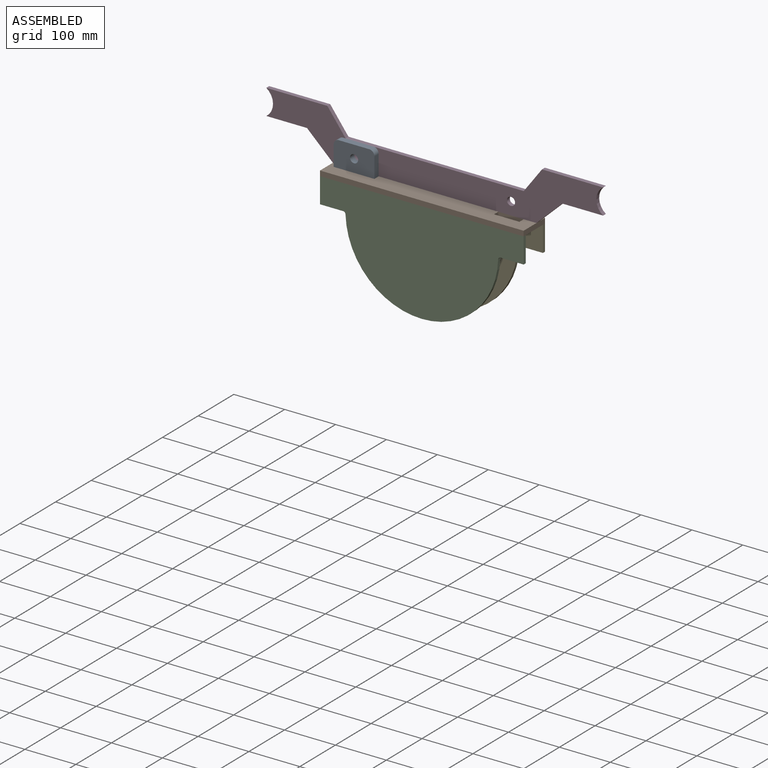
[diagram: assembled view]
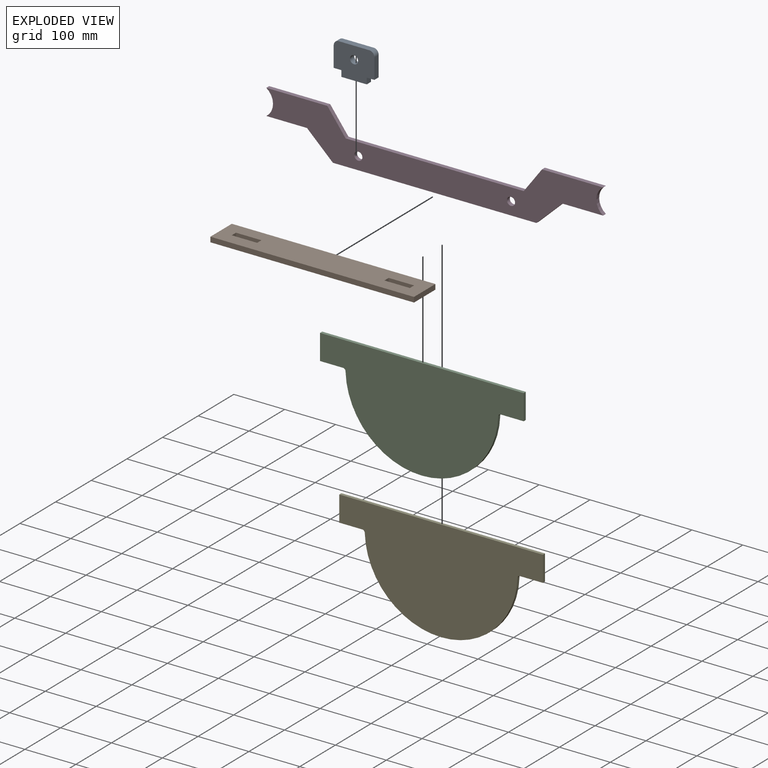
[diagram: exploded view]
GUIDED TOUR — MATED ASSEMBLY (Onshape document ceb0c7186d2a392add2b18d2, AutoMate assembly ceb0c7186d2a392add2b18d2_adab8045cc2968f3f8e7a26d_428f04f57cada901e22389ac_default)

This assembly has 5 components, labeled P0..P4 below (a component is one placed occurrence of a part; the same part can appear more than once), held together by 4 mates. A mate is a constraint between two components; its type names the relative motion it leaves free:
  FASTENED — locks the two components together rigidly (no relative motion).
Axis/direction vectors are unit vectors and 'through' points are millimeter coordinates, both in the assembly's world frame.

MATES
  1. FASTENED "Fastened 4": P4 <-> P1, direction (0.000, 0.000, 1.000) through (-182.62, 120.45, 76.19) mm
  2. FASTENED "Fastened 3": P2 <-> P1, direction (0.000, 0.000, 1.000) through (-182.62, 60.45, 76.19) mm
  3. FASTENED "Fastened 2": P0 <-> P1, direction (0.000, 0.000, 1.000) through (-157.62, 84.45, 86.19) mm
  4. FASTENED "Fastened 5": P3 <-> P0, direction (0.000, -1.000, 0.000) through (-132.62, 96.45, 111.19) mm

ASSEMBLY ORDER
  1. P3 — the base component [order verified]
  2. P0 [order verified]
  3. P1 [order verified]
  4. P2 [order verified]
  5. P4 [order verified]
Order-tag legend:
  [order verified] — this step's position reverses a verified removal order: the component was checked to insert without passing through the ones already placed.

Of the 5 components, 5 carry the full construction recipe — the FeatureScript program that regenerates the part's solid from scratch; the rest are supplied as boundary geometry only.
Each toured component is shown spotlighted twice — in the assembled view, then in the exploded view, where a leader line traces a displaced component back to its assembled socket (saturated green if recipe-attached, orange if geometry-only; every other component desaturated gray) — followed by its recipe or geometry summary and the mates that hold it.
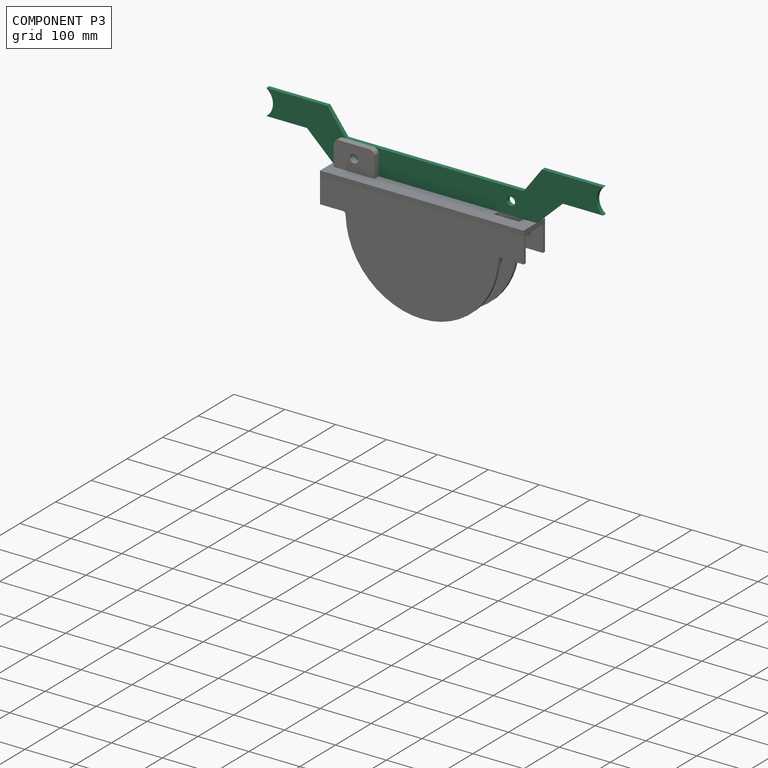
[diagram: component P3 — assembled]
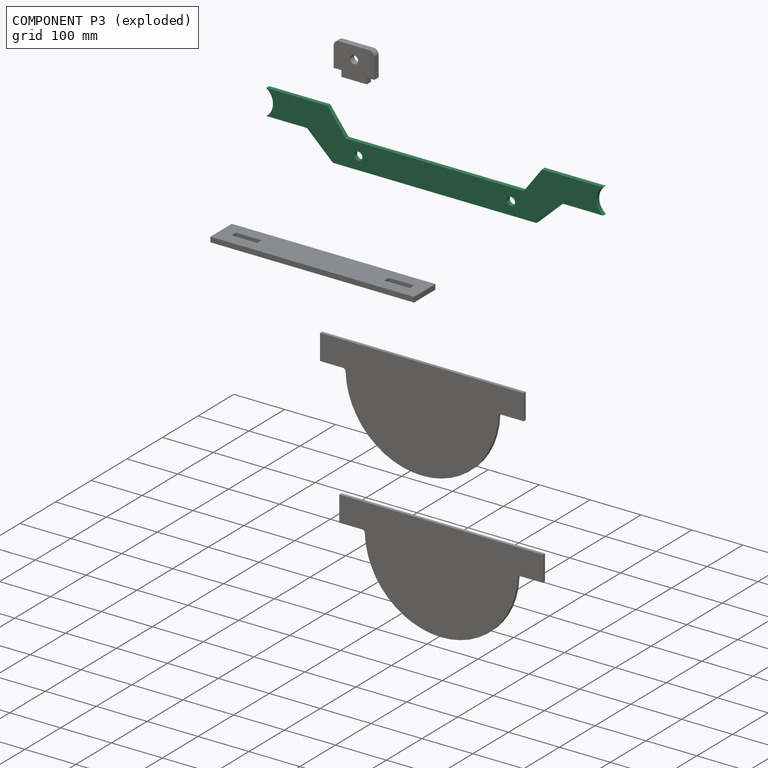
[diagram: component P3 — exploded]
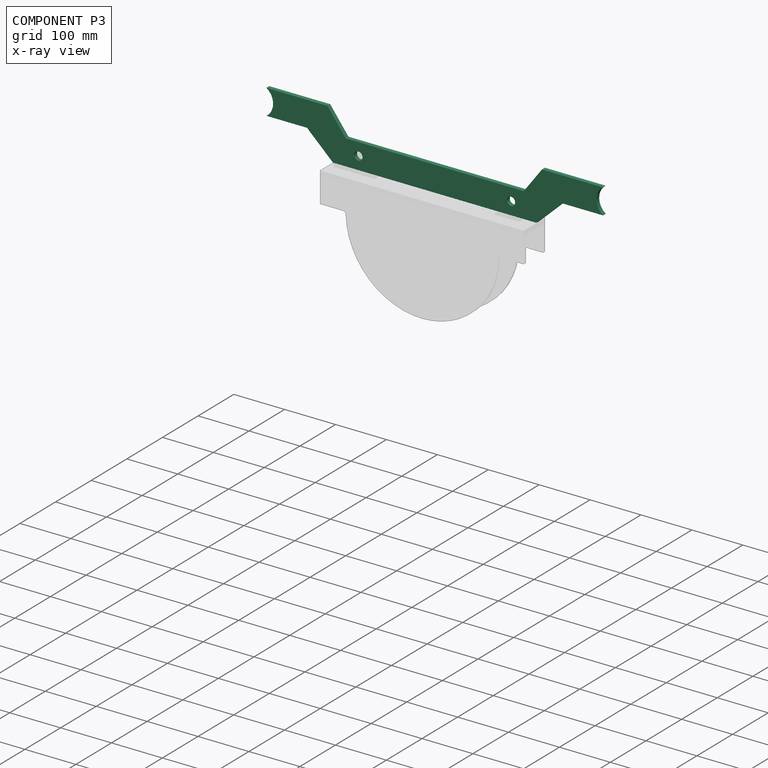
[diagram: component P3 — x-ray view]
COMPONENT P3 — recipe-attached (CADFS 00969449, mesh-verified: the recipe's output STEP matches this component's geometry to below the mesh-comparison resolution (tessellation chordal tolerance ~1 mm)).
Held by: FASTENED mate "Fastened 5" to P0.
Construction recipe (FeatureScript — the CAD program that rebuilds this solid; sketch coordinates are in the units given by the * unit suffixes, e.g. mm):

FeatureScript 1511;
import(path : "onshape/std/geometry.fs", version : "1511.0");
import(path : "onshape/std/common.fs", version : "1511.0");
const mm = millimeter;
const VERTEX = EntityType.VERTEX;
const EDGE = EntityType.EDGE;
const FACE = EntityType.FACE;
const BODY = EntityType.BODY;
function v(x, y){return vector(x, y);}
function OD(order){return orderDisambiguation(order);}
function OSD(set){return originalSetDisambiguation(set);}
function TD(topology){return topologyDisambiguation(topology);}
function TDD(query){return trueDependencyDisambiguation(query);}
function sQuery(a, b, c) {return sketchEntityQuery(a, b, c);}

annotation { "Feature Type Name" : "Feature", "Feature Type Description" : "" }
export const myFeature = defineFeature(function(context is Context, id is Id, definition is map)
    precondition{}
    {
        {
            var Q0;
            Q0=qCreatedBy(makeId("Front.planeOp"),FACE);
            var sketch = newSketch(context, id + "F0", { "sketchPlane" : qUnion([Q0])});
            skLineSegment(sketch, "E0", {"start": v(-200.2, -56.86) * mm, "end": v(199.8, -56.86) * mm});
            skLineSegment(sketch, "E1", {"start": v(-200.2, -56.86) * mm, "end": v(-251.02, -8.73) * mm});
            skLineSegment(sketch, "E2", {"start": v(-251.02, -8.73) * mm, "end": v(-331.02, -8.73) * mm});
            skLineSegment(sketch, "E3", {"start": v(-331.02, 41.27) * mm, "end": v(-211.02, 41.27) * mm});
            skLineSegment(sketch, "E4", {"start": v(-211.02, 41.27) * mm, "end": v(-175.2, -6.86) * mm});
            skLineSegment(sketch, "E5", {"start": v(-175.2, -6.86) * mm, "end": v(174.8, -6.86) * mm});
            skLineSegment(sketch, "E6", {"start": v(-0.2, -56.86) * mm, "end": v(-0.2, 65.39) * mm, "construction": true});
            skCircle(sketch, "E7", {"center": v(-347.88, 16.27) * mm, "radius": 30.15 * mm});
            skLineSegment(sketch, "E8.MirrorCS", {"start": v(210.64, 41.27) * mm, "end": v(174.8, -6.86) * mm});
            skLineSegment(sketch, "E9.MirrorCS", {"start": v(199.8, -56.86) * mm, "end": v(250.64, -8.73) * mm});
            skLineSegment(sketch, "E10.MirrorCS", {"start": v(250.64, -8.73) * mm, "end": v(330.64, -8.73) * mm});
            skLineSegment(sketch, "E11.MirrorCS", {"start": v(330.64, 41.27) * mm, "end": v(210.64, 41.27) * mm});
            skCircle(sketch, "E12.MirrorC", {"center": v(347.5, 16.27) * mm, "radius": 30.15 * mm});
            skCircle(sketch, "E13", {"center": v(-150.2, -31.86) * mm, "radius": 8 * mm});
            skCircle(sketch, "E14.MirrorC", {"center": v(149.8, -31.86) * mm, "radius": 8 * mm});
            skSolve(sketch);
        }
        {
            var Q0;
            Q0=makeQuery(id+"F0.imprint","IMPRINT",FACE,{"disambiguationData":[TD([[makeQuery(id+"F0.imprint","IMPRINT",EDGE,{"derivedFrom":sQuery(id+"F0.wireOp",EDGE,"E0")}),1.0]])]});
            extrude(context, id + "F1", {"entities" : qUnion([Q0]), "depth" : 8 * mm, "offsetDistance" : 25 * mm});
        }
    });
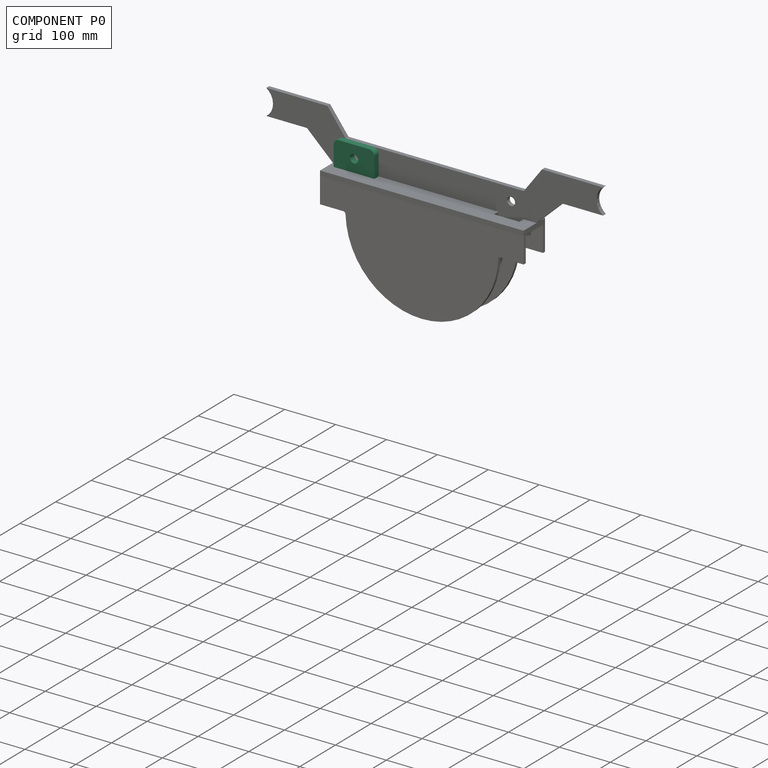
[diagram: component P0 — assembled]
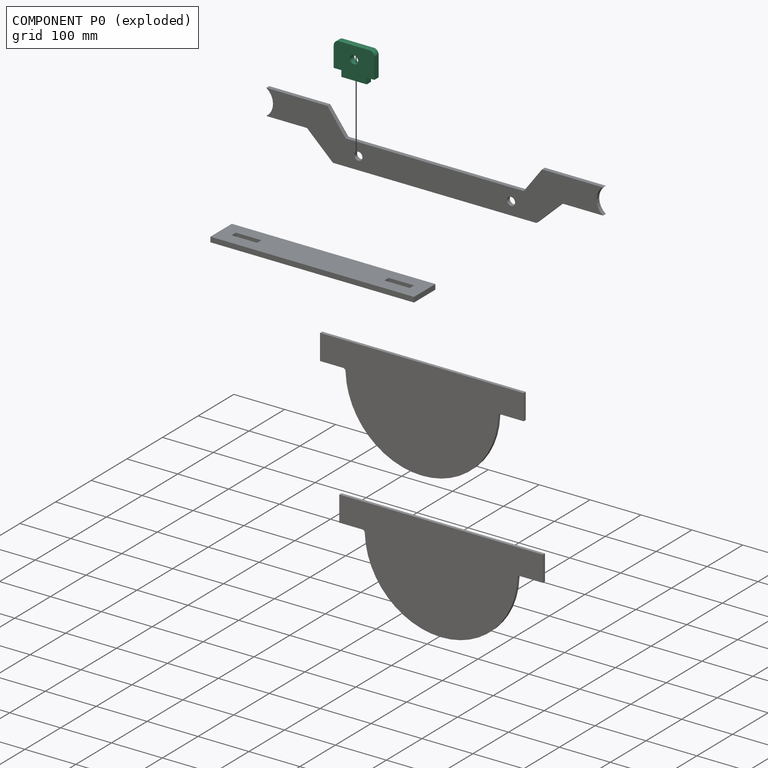
[diagram: component P0 — exploded]
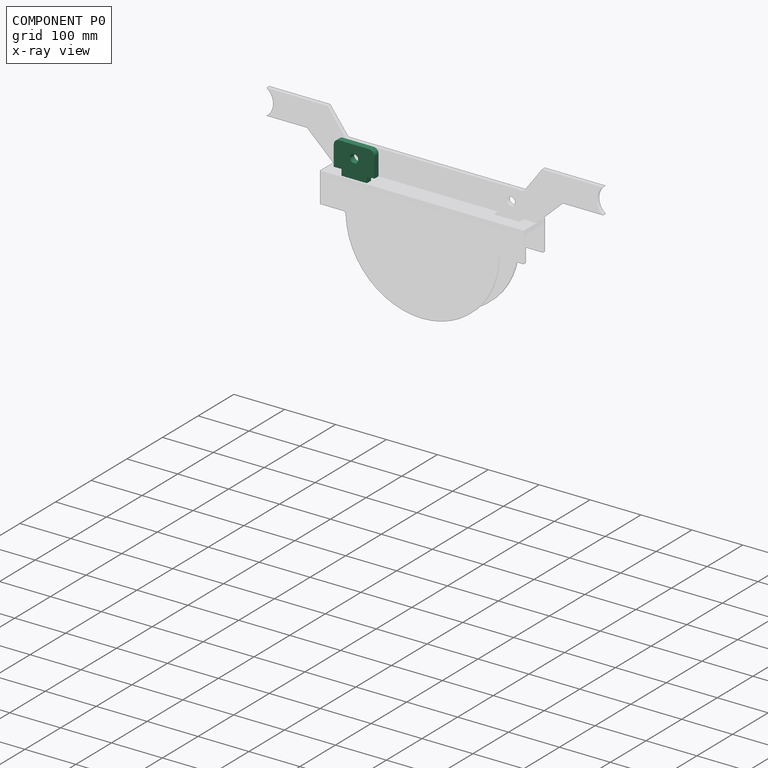
[diagram: component P0 — x-ray view]
COMPONENT P0 — recipe-attached (CADFS 00969448, mesh-verified: the recipe's output STEP matches this component's geometry to below the mesh-comparison resolution (tessellation chordal tolerance ~0.153 mm)).
Held by: FASTENED mate "Fastened 2" to P1; FASTENED mate "Fastened 5" to P3.
Construction recipe (FeatureScript — the CAD program that rebuilds this solid; sketch coordinates are in the units given by the * unit suffixes, e.g. mm):

FeatureScript 1511;
import(path : "onshape/std/geometry.fs", version : "1511.0");
import(path : "onshape/std/common.fs", version : "1511.0");
const mm = millimeter;
const VERTEX = EntityType.VERTEX;
const EDGE = EntityType.EDGE;
const FACE = EntityType.FACE;
const BODY = EntityType.BODY;
function v(x, y){return vector(x, y);}
function OD(order){return orderDisambiguation(order);}
function OSD(set){return originalSetDisambiguation(set);}
function TD(topology){return topologyDisambiguation(topology);}
function TDD(query){return trueDependencyDisambiguation(query);}
function sQuery(a, b, c) {return sketchEntityQuery(a, b, c);}

annotation { "Feature Type Name" : "Feature", "Feature Type Description" : "" }
export const myFeature = defineFeature(function(context is Context, id is Id, definition is map)
    precondition{}
    {
        {
            var Q0;
            Q0=qCreatedBy(makeId("Front.planeOp"),FACE);
            var sketch = newSketch(context, id + "F0", { "sketchPlane" : qUnion([Q0])});
            skLineSegment(sketch, "E0", {"start": v(-40, 0) * mm, "end": v(40, 0) * mm});
            skLineSegment(sketch, "E1", {"start": v(40, 0) * mm, "end": v(40, -50) * mm});
            skLineSegment(sketch, "E2", {"start": v(40, -50) * mm, "end": v(25, -50) * mm});
            skLineSegment(sketch, "E3", {"start": v(25, -50) * mm, "end": v(25, -62) * mm});
            skLineSegment(sketch, "E4", {"start": v(25, -62) * mm, "end": v(-25, -62) * mm});
            skLineSegment(sketch, "E5", {"start": v(-25, -62) * mm, "end": v(-25, -50) * mm});
            skLineSegment(sketch, "E6", {"start": v(-25, -50) * mm, "end": v(-40, -50) * mm});
            skLineSegment(sketch, "E7", {"start": v(-40, -50) * mm, "end": v(-40, 0) * mm});
            skCircle(sketch, "E8", {"center": v(0, -25) * mm, "radius": 8 * mm});
            skSolve(sketch);
        }
        {
            var Q0;
            Q0 = qSketchRegion(id + "F0", true);
            extrude(context, id + "F1", {"entities" : qUnion([Q0]), "depth" : 12 * mm, "offsetDistance" : 25 * mm});
        }
        {
            var Q0;
            Q0=makeQuery(id+"F1.opExtrude","SWEPT_EDGE",EDGE,{"disambiguationData":[OSD([sQuery(id+"F0.wireOp",EDGE,"E0"),sQuery(id+"F0.wireOp",EDGE,"E7")])]});
            var Q1;
            Q1=makeQuery(id+"F1.opExtrude","SWEPT_EDGE",EDGE,{"disambiguationData":[OSD([sQuery(id+"F0.wireOp",EDGE,"E0"),sQuery(id+"F0.wireOp",EDGE,"E1")])]});
            fillet(context, id + "F2", {"entities" : qUnion([Q0, Q1]), "radius" : 10 * mm, "tangentPropagation" : true, "allowEdgeOverflow" : false});
        }
    });
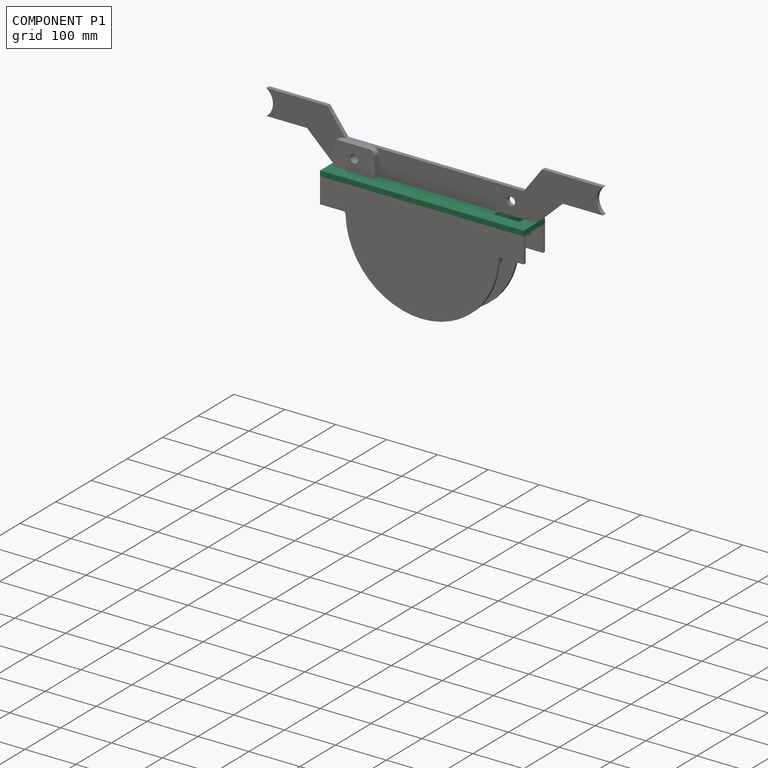
[diagram: component P1 — assembled]
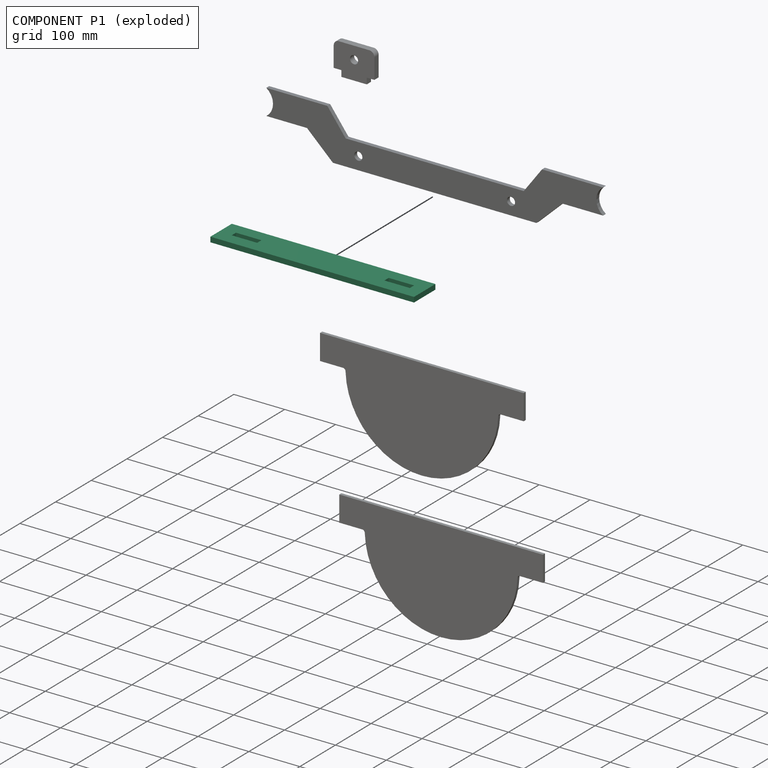
[diagram: component P1 — exploded]
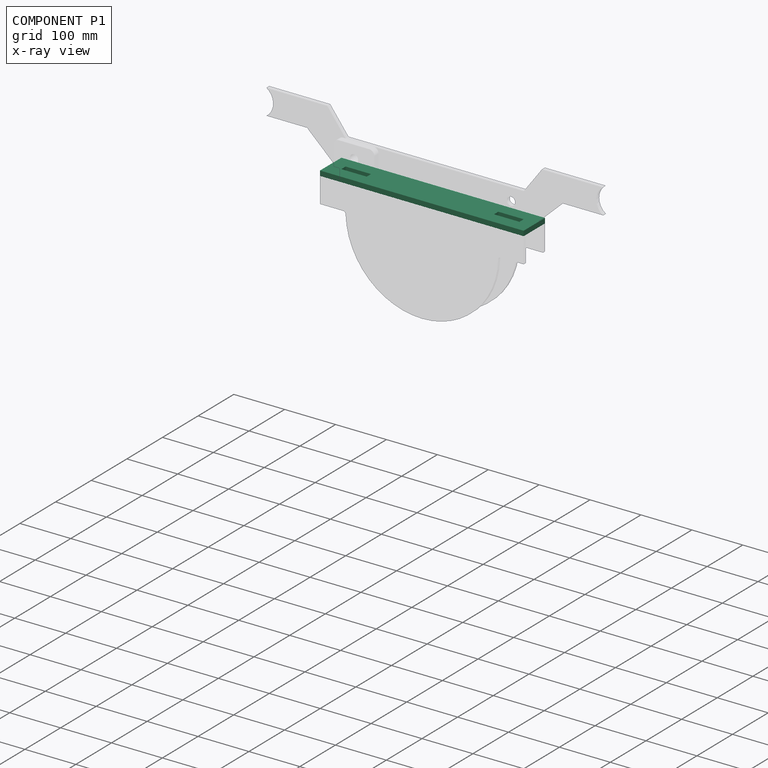
[diagram: component P1 — x-ray view]
COMPONENT P1 — recipe-attached (CADFS 00969450, mesh-verified: the recipe's output STEP matches this component's geometry to below the mesh-comparison resolution (tessellation chordal tolerance ~0.607 mm)).
Held by: FASTENED mate "Fastened 4" to P4; FASTENED mate "Fastened 3" to P2; FASTENED mate "Fastened 2" to P0.
Construction recipe (FeatureScript — the CAD program that rebuilds this solid; sketch coordinates are in the units given by the * unit suffixes, e.g. mm):

FeatureScript 1511;
import(path : "onshape/std/geometry.fs", version : "1511.0");
import(path : "onshape/std/common.fs", version : "1511.0");
const mm = millimeter;
const VERTEX = EntityType.VERTEX;
const EDGE = EntityType.EDGE;
const FACE = EntityType.FACE;
const BODY = EntityType.BODY;
function v(x, y){return vector(x, y);}
function OD(order){return orderDisambiguation(order);}
function OSD(set){return originalSetDisambiguation(set);}
function TD(topology){return topologyDisambiguation(topology);}
function TDD(query){return trueDependencyDisambiguation(query);}
function sQuery(a, b, c) {return sketchEntityQuery(a, b, c);}

annotation { "Feature Type Name" : "Feature", "Feature Type Description" : "" }
export const myFeature = defineFeature(function(context is Context, id is Id, definition is map)
    precondition{}
    {
        {
            var Q0;
            Q0=qCreatedBy(makeId("Top.planeOp"),FACE);
            var sketch = newSketch(context, id + "F0", { "sketchPlane" : qUnion([Q0])});
            skLineSegment(sketch, "E0.bottom", {"start": v(-190.65, -46.64) * mm, "end": v(209.35, -46.64) * mm});
            skLineSegment(sketch, "E0.top", {"start": v(-190.65, 13.36) * mm, "end": v(209.35, 13.36) * mm});
            skLineSegment(sketch, "E0.left", {"start": v(-190.65, -46.64) * mm, "end": v(-190.65, 13.36) * mm});
            skLineSegment(sketch, "E0.right", {"start": v(209.35, -46.64) * mm, "end": v(209.35, 13.36) * mm});
            skLineSegment(sketch, "E1.bottom", {"start": v(134.35, -22.64) * mm, "end": v(184.35, -22.64) * mm});
            skLineSegment(sketch, "E1.top", {"start": v(134.35, -10.64) * mm, "end": v(184.35, -10.64) * mm});
            skLineSegment(sketch, "E1.left", {"start": v(134.35, -22.64) * mm, "end": v(134.35, -10.64) * mm});
            skLineSegment(sketch, "E1.right", {"start": v(184.35, -22.64) * mm, "end": v(184.35, -10.64) * mm});
            skLineSegment(sketch, "E2.bottom", {"start": v(-165.65, -22.64) * mm, "end": v(-115.65, -22.64) * mm});
            skLineSegment(sketch, "E2.top", {"start": v(-165.65, -10.64) * mm, "end": v(-115.65, -10.64) * mm});
            skLineSegment(sketch, "E2.left", {"start": v(-165.65, -22.64) * mm, "end": v(-165.65, -10.64) * mm});
            skLineSegment(sketch, "E2.right", {"start": v(-115.65, -22.64) * mm, "end": v(-115.65, -10.64) * mm});
            skSolve(sketch);
        }
        {
            var Q0;
            Q0=makeQuery(id+"F0.imprint","IMPRINT",FACE,{"disambiguationData":[TD([[makeQuery(id+"F0.imprint","IMPRINT",EDGE,{"derivedFrom":sQuery(id+"F0.wireOp",EDGE,"E0.bottom")}),1.0]])]});
            extrude(context, id + "F1", {"entities" : qUnion([Q0]), "depth" : 10 * mm, "offsetDistance" : 25 * mm});
        }
    });
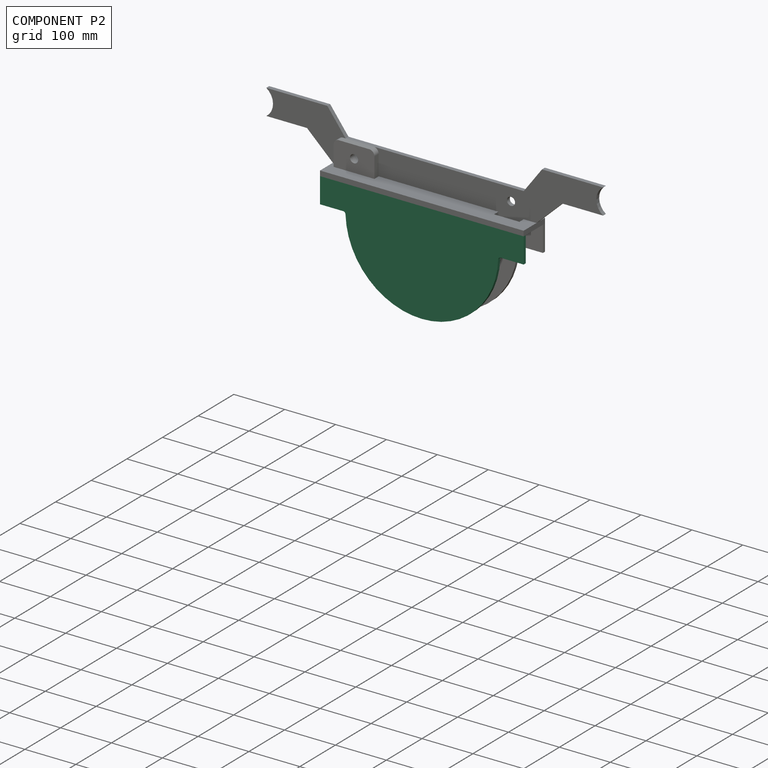
[diagram: component P2 — assembled]
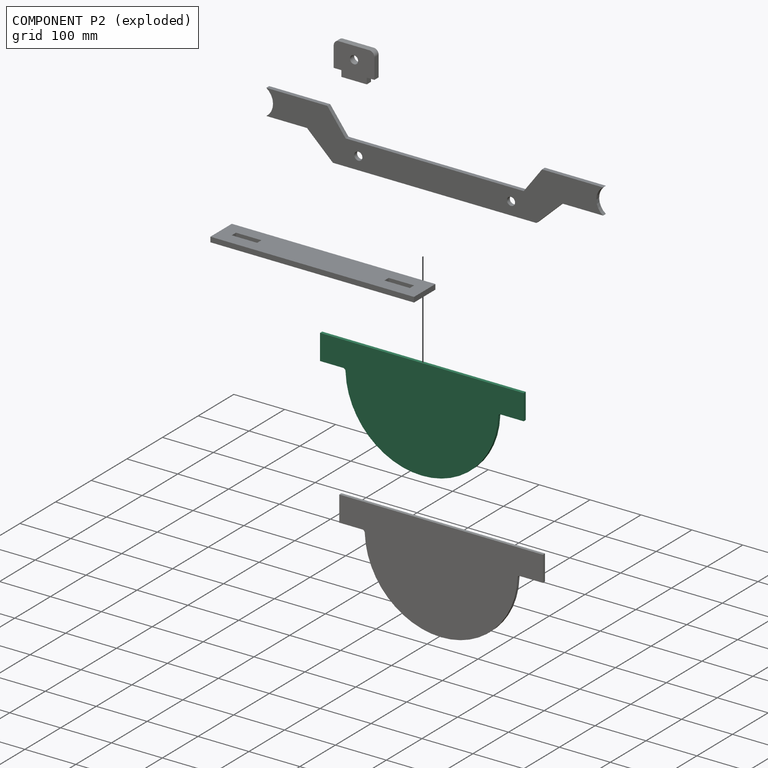
[diagram: component P2 — exploded]
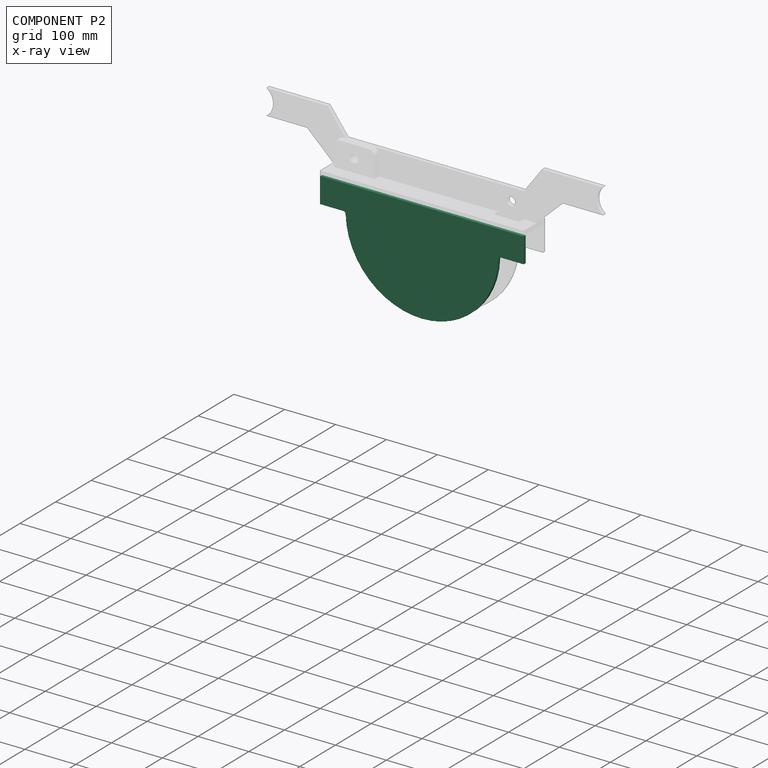
[diagram: component P2 — x-ray view]
COMPONENT P2 — recipe-attached (CADFS 00969447, mesh-verified: the recipe's output STEP matches this component's geometry to below the mesh-comparison resolution (tessellation chordal tolerance ~0.671 mm)).
Held by: FASTENED mate "Fastened 3" to P1.
Construction recipe (FeatureScript — the CAD program that rebuilds this solid; sketch coordinates are in the units given by the * unit suffixes, e.g. mm):

FeatureScript 1511;
import(path : "onshape/std/geometry.fs", version : "1511.0");
import(path : "onshape/std/common.fs", version : "1511.0");
const mm = millimeter;
const VERTEX = EntityType.VERTEX;
const EDGE = EntityType.EDGE;
const FACE = EntityType.FACE;
const BODY = EntityType.BODY;
function v(x, y){return vector(x, y);}
function OD(order){return orderDisambiguation(order);}
function OSD(set){return originalSetDisambiguation(set);}
function TD(topology){return topologyDisambiguation(topology);}
function TDD(query){return trueDependencyDisambiguation(query);}
function sQuery(a, b, c) {return sketchEntityQuery(a, b, c);}

annotation { "Feature Type Name" : "Feature", "Feature Type Description" : "" }
export const myFeature = defineFeature(function(context is Context, id is Id, definition is map)
    precondition{}
    {
        {
            var Q0;
            Q0=qCreatedBy(makeId("Front.planeOp"),FACE);
            var sketch = newSketch(context, id + "F0", { "sketchPlane" : qUnion([Q0])});
            skLineSegment(sketch, "E0", {"start": v(-200, 0) * mm, "end": v(200, 0) * mm});
            skLineSegment(sketch, "E1", {"start": v(200, 0) * mm, "end": v(200, -50) * mm});
            skLineSegment(sketch, "E2", {"start": v(200, -50) * mm, "end": v(150, -50) * mm});
            skLineSegment(sketch, "E3", {"start": v(-200, 0) * mm, "end": v(-200, -50) * mm});
            skLineSegment(sketch, "E4", {"start": v(-200, -50) * mm, "end": v(-150, -50) * mm});
            skArc(sketch, "E5", {"start": v(-150, -50) * mm, "mid": v(0, -200) * mm, "end": v(150, -50) * mm});
            skSolve(sketch);
        }
        {
            var Q0;
            Q0 = qSketchRegion(id + "F0", true);
            extrude(context, id + "F1", {"entities" : qUnion([Q0]), "depth" : 6 * mm, "offsetDistance" : 25 * mm});
        }
        {
            var Q0;
            Q0=makeQuery(id+"F1.opExtrude","SWEPT_EDGE",EDGE,{"disambiguationData":[OSD([sQuery(id+"F0.wireOp",EDGE,"E2"),sQuery(id+"F0.wireOp",EDGE,"E5")])]});
            var Q1;
            Q1=makeQuery(id+"F1.opExtrude","SWEPT_EDGE",EDGE,{"disambiguationData":[OSD([sQuery(id+"F0.wireOp",EDGE,"E4"),sQuery(id+"F0.wireOp",EDGE,"E5")])]});
            fillet(context, id + "F2", {"entities" : qUnion([Q0, Q1]), "radius" : 5 * mm, "tangentPropagation" : true, "allowEdgeOverflow" : false});
        }
    });
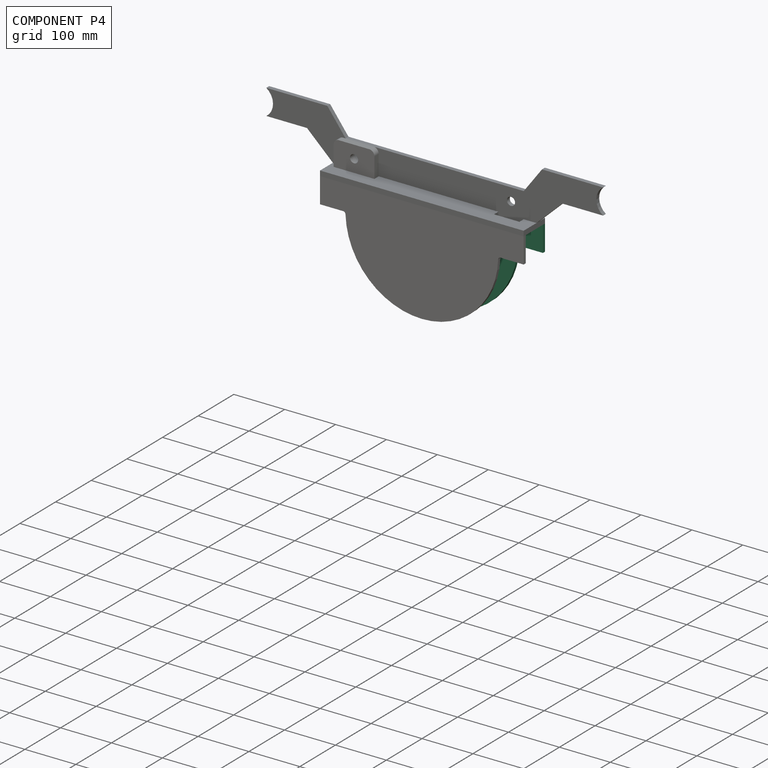
[diagram: component P4 — assembled]
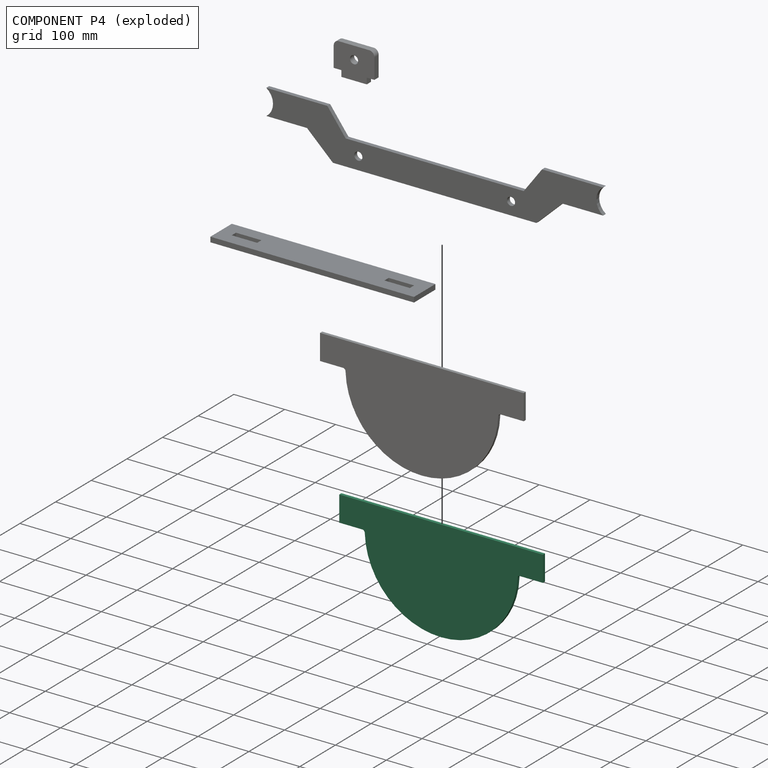
[diagram: component P4 — exploded]
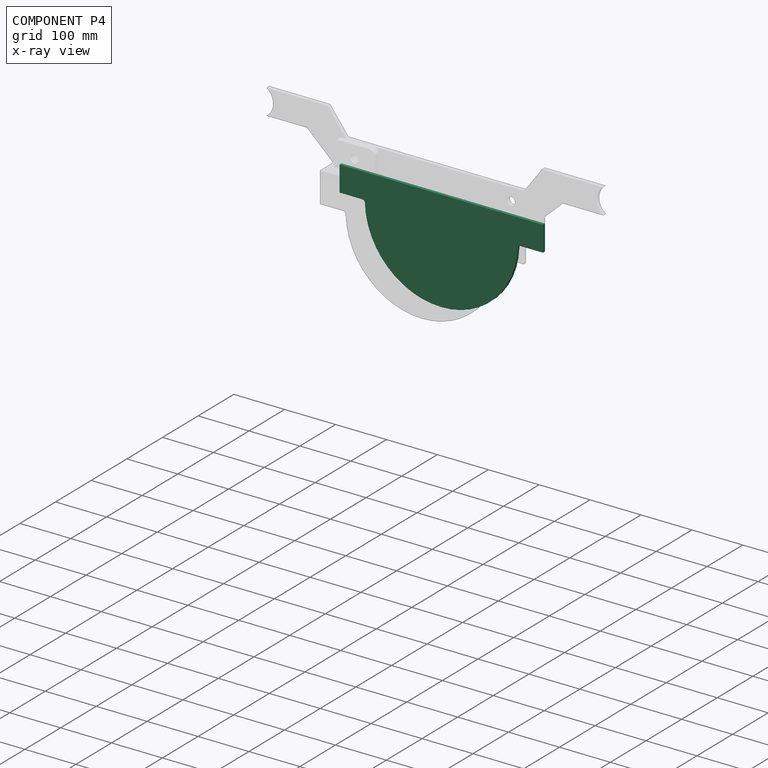
[diagram: component P4 — x-ray view]
COMPONENT P4 — same part as P2 (CADFS 00969447); its construction recipe is shown at P2.
Held by: FASTENED mate "Fastened 4" to P1.
PROVENANCE & LICENSES
Assembly (occurrences, transforms, mates, per-part STEP geometry): AutoMate dataset, Zenodo record 7776208, CC0.
Construction recipes: CADFS (HuggingFace VladPyatov/CADFS, CC-BY-4.0, layered over the ABC dataset), FeatureScript reconstruction programs keyed by ABC model id.
Join: ABC meta listings map ABC model id -> Onshape documentId; within a shared document, parts are matched by geometric signature (bounding-box dims + volume at 0.1% relative tolerance, exact B-rep face/solid counts).
Verification: 5 of this assembly's 5 components carry a recipe attachment, and every attachment is mesh-verified: the CADFS STEP and the AutoMate member STEP were compared as meshes in their shared local frame (symmetric sampled-point-to-mesh distance); worst across the 5 attachments: below the mesh-comparison resolution (tessellation chordal tolerance ~1 mm) on a 669 mm part.
Renders: orthographic iso camera (az 35 / el 25); the floor grid conveys scale (grid pitch printed in each image; no ruler). In the exploded view each component is displaced by its stored offset vector: the offsets alone carry the explosion direction (mate normal/axis signs are not orientation cues and do not encode it), and separation distances are assigned per mate-chain, not proportionally to assembly-order depth.
